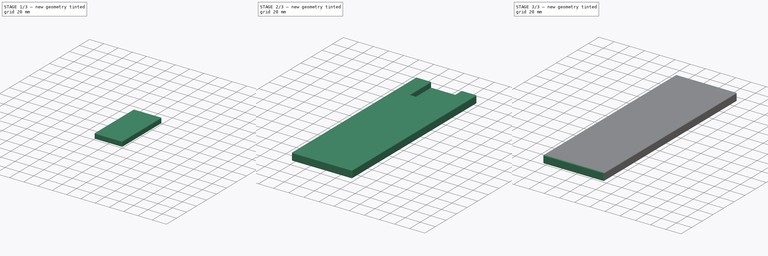
[diagram: build sequence overview — one tinted view per stage of 3, left to right]
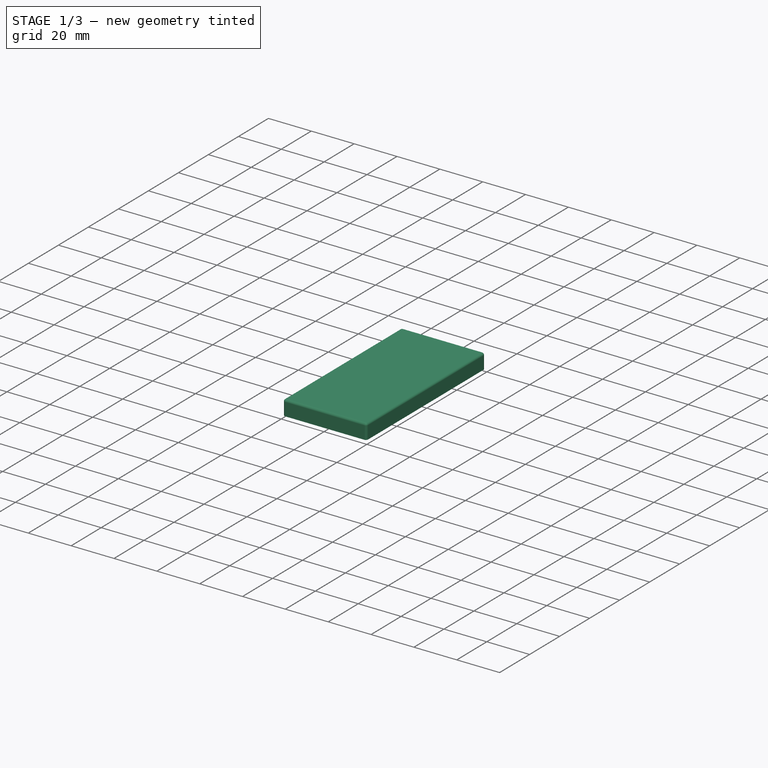
[diagram: stage 1 of 3 — iso view after this stage's code; geometry added in this stage tinted green]
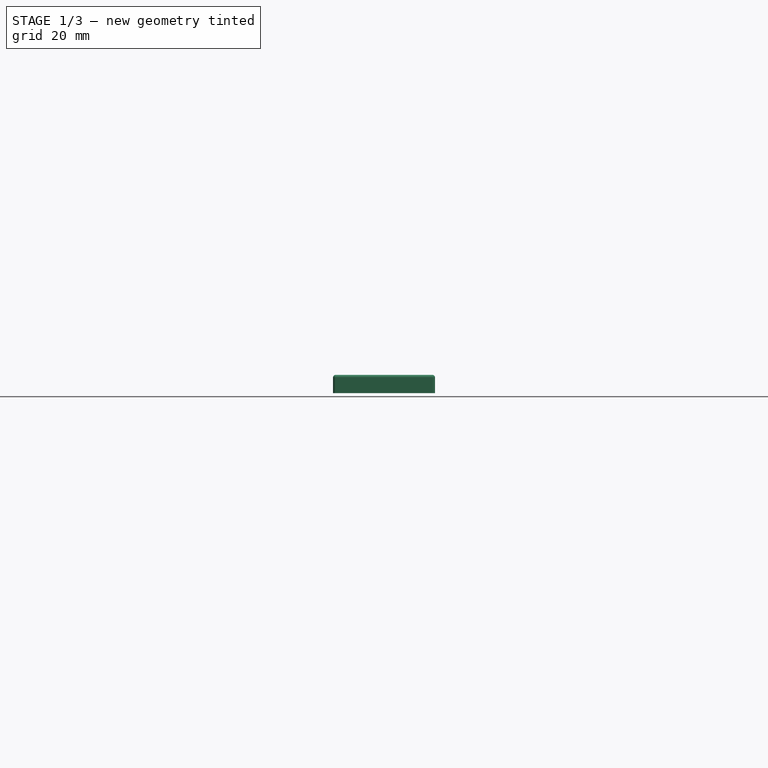
[diagram: stage 1 of 3 — front view after this stage's code; geometry added in this stage tinted green]
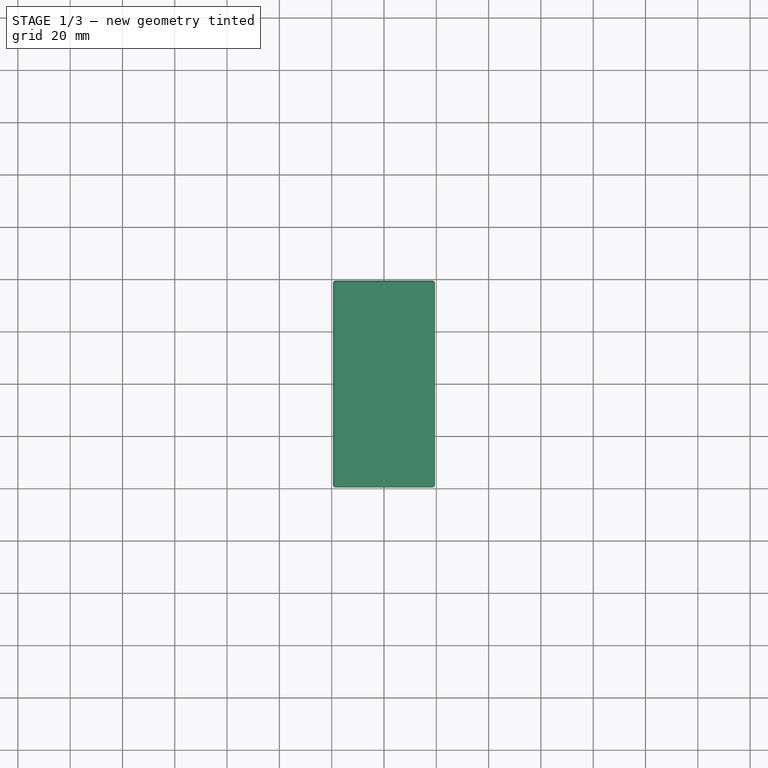
[diagram: stage 1 of 3 — top view after this stage's code; geometry added in this stage tinted green]
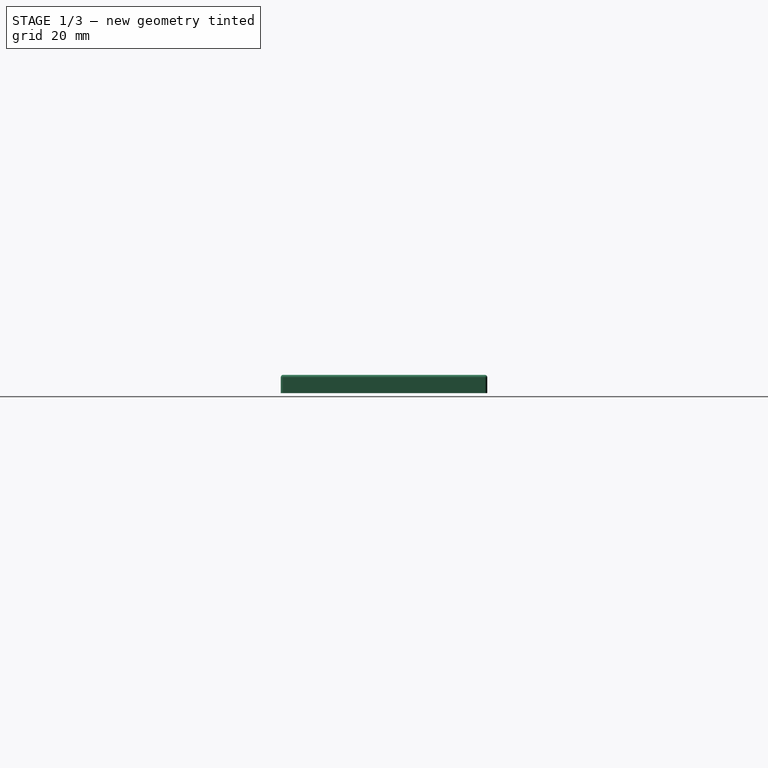
[diagram: stage 1 of 3 — right view after this stage's code; geometry added in this stage tinted green]
FCSTD DOCUMENT  (FreeCAD 1.1R20251125 (Git shallow))
Label: piano_spezie
License: All rights reserved
objects: Sketcher::SketchObject×4, App::Point×3, PartDesign::Pad×3, PartDesign::Fillet×3, PartDesign::Body×3, PartDesign::Pocket×1, App::DocumentObjectGroup×1
note: 32 computed .brp shape members not serialized (recipe doc carries the construction recipe); baked Part::Feature solids carry a one-line shape summary decoded from their .brp

FEATURE [PartDesign::Body] Body001  label="Sotto"
  AllowCompound = false
  Group = -> [Sketch001,Pad001,Sketch002,Pocket,Fillet001]
  Origin = -> Origin002
  Tip = -> Fillet001
FEATURE [App::Point] Origin005  label="Origin006"
  Role = Origin
FEATURE [Sketcher::SketchObject] Sketch003
  ArcFitTolerance = 1e-06
  AttachmentSupport = -> [Origin004]
  ExternalTypes = [0]
  FullyConstrained = true
  MakeInternals = false
  MapMode = 5
  sketch-geometry (5):
    g0: LineSegment StartX=-19.5 StartY=-39.5 StartZ=0 EndX=19.5 EndY=-39.5 EndZ=0
    g1: LineSegment StartX=19.5 StartY=-39.5 StartZ=0 EndX=19.5 EndY=39.5 EndZ=0
    g2: LineSegment StartX=19.5 StartY=39.5 StartZ=0 EndX=-19.5 EndY=39.5 EndZ=0
    g3: LineSegment StartX=-19.5 StartY=39.5 StartZ=0 EndX=-19.5 EndY=-39.5 EndZ=0
    g4: GeomPoint [constr] X=0 Y=0 Z=0
  constraints (12):
    c: Coincident(g0,g1)
    c: Coincident(g1,g2)
    c: Coincident(g2,g3)
    c: Coincident(g3,g0)
    c: Horizontal(g0)
    c: Horizontal(g2)
    c: Vertical(g1)
    c: Vertical(g3)
    c: Symmetric(g2,g0,g4)
    c: Distance(g1,g3) = 39
    c: Distance(g0,g2) = 79
    c: Coincident(g4,g-1)
FEATURE [PartDesign::Pad] Pad002
  Direction = (0,0,1)
  Length = 7
  Length2 = 10
  Profile = -> Sketch003
  ReferenceAxis = -> Sketch003 [N_Axis]
  Refine = true
  SideType = 0
  Suppressed = false
  Type = 0
  Type2 = 0
FEATURE [PartDesign::Fillet] Fillet002
  Base = -> Pad002 [Edge8,Edge1,Edge5,Edge2,Edge12,Edge4,Edge7,Edge10]
  BaseFeature = -> Pad002
  Radius = 1
  Refine = true
  SupportTransform = false
  Suppressed = false
  UseAllEdges = false
FEATURE [PartDesign::Body] Body002  label="Placca_di_Connessione"
  AllowCompound = false
  Group = -> [Sketch003,Pad002,Fillet002]
  Origin = -> Origin004
  Placement = pos=(9.17,183.56,0) rot=(0,0,1;0rad)
  Tip = -> Fillet002
FEATURE [App::DocumentObjectGroup] Group  label="Sotto_Group"
  Group = -> [Body001,Body002]
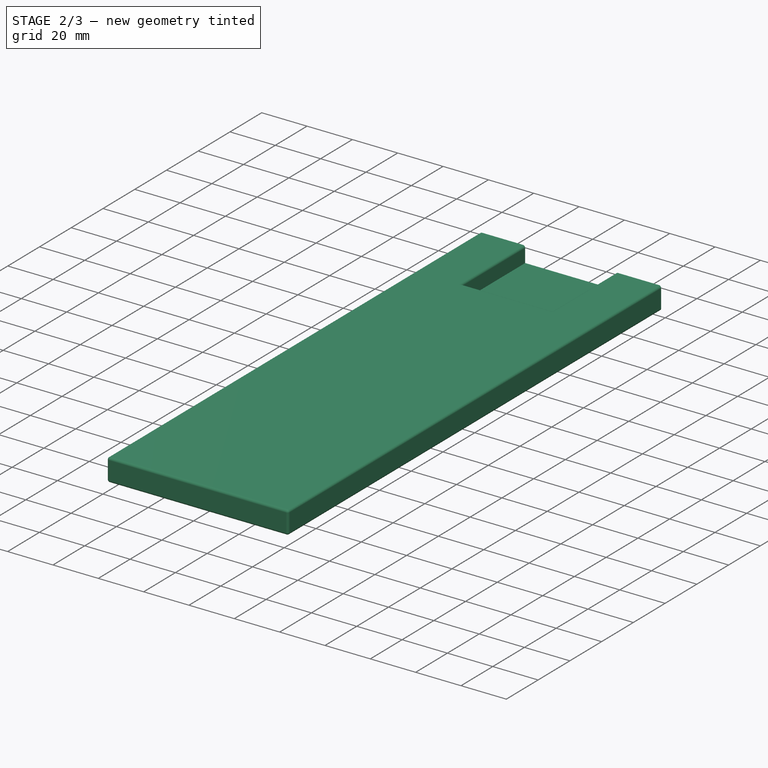
[diagram: stage 2 of 3 — iso view after this stage's code; geometry added in this stage tinted green]
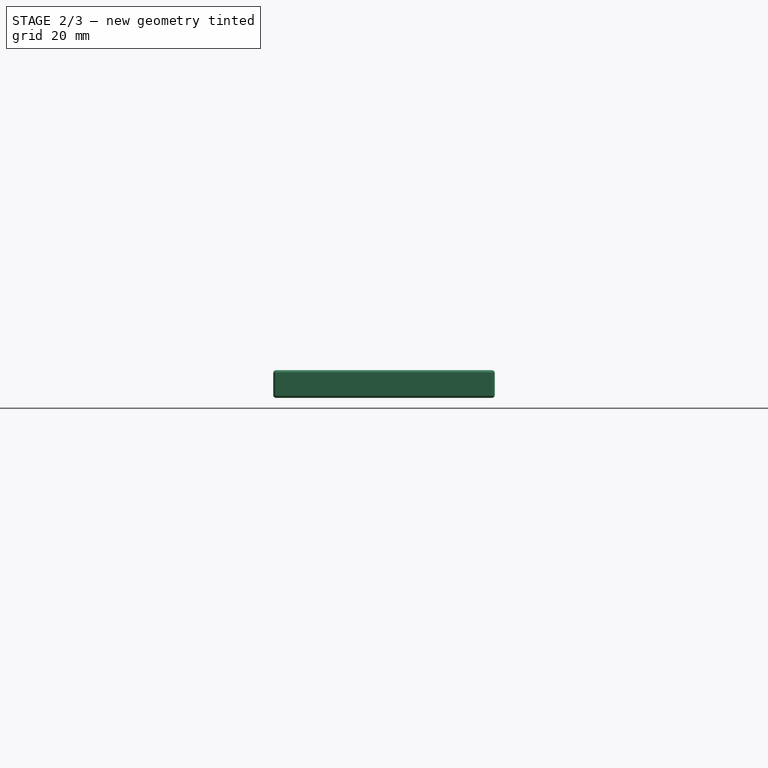
[diagram: stage 2 of 3 — front view after this stage's code; geometry added in this stage tinted green]
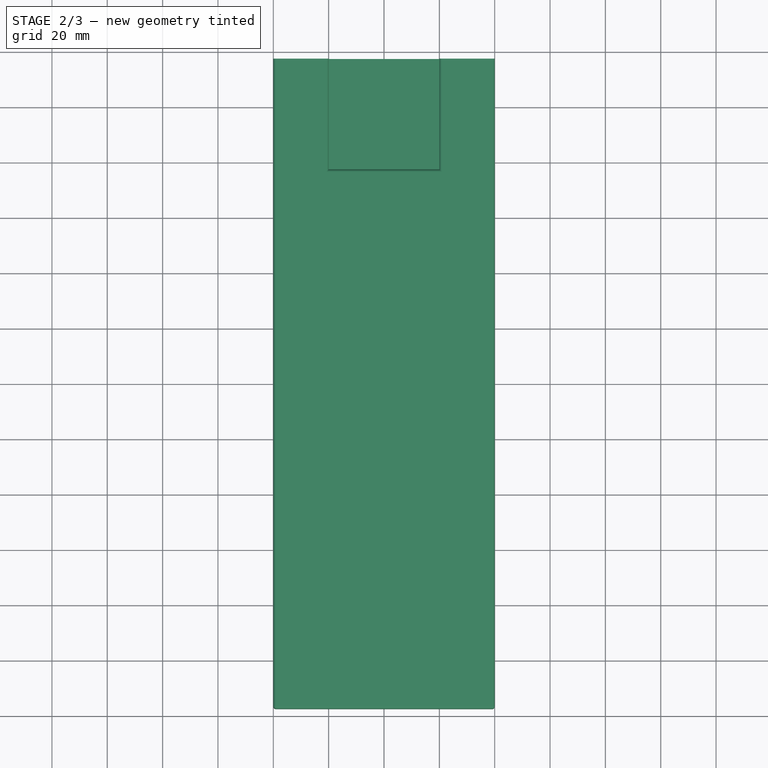
[diagram: stage 2 of 3 — top view after this stage's code; geometry added in this stage tinted green]
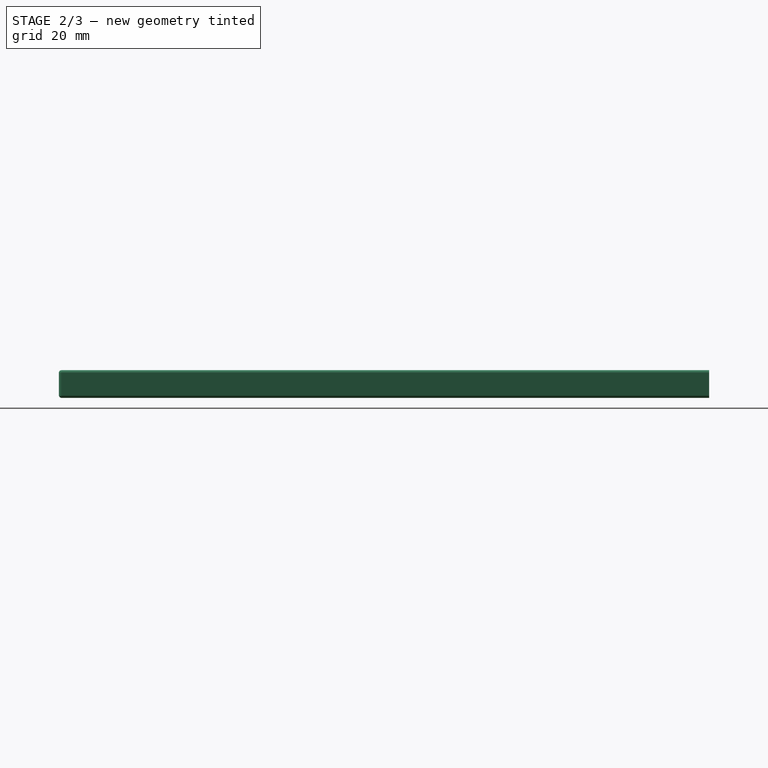
[diagram: stage 2 of 3 — right view after this stage's code; geometry added in this stage tinted green]
FEATURE [PartDesign::Body] Body  label="Sopra"
  AllowCompound = false
  Group = -> [Sketch,Pad,Fillet]
  Origin = -> Origin
  Placement = pos=(158.82,-54.77,0) rot=(0,0,1;0rad)
  Tip = -> Fillet
FEATURE [App::Point] Origin003
  Role = Origin
FEATURE [Sketcher::SketchObject] Sketch001
  ArcFitTolerance = 1e-06
  AttachmentSupport = -> [Origin002]
  ExternalTypes = [0]
  FullyConstrained = true
  MakeInternals = false
  MapMode = 5
  sketch-geometry (5):
    g0: LineSegment StartX=-40 StartY=-117.5 StartZ=0 EndX=40 EndY=-117.5 EndZ=0
    g1: LineSegment StartX=40 StartY=-117.5 StartZ=0 EndX=40 EndY=117.5 EndZ=0
    g2: LineSegment StartX=40 StartY=117.5 StartZ=0 EndX=-40 EndY=117.5 EndZ=0
    g3: LineSegment StartX=-40 StartY=117.5 StartZ=0 EndX=-40 EndY=-117.5 EndZ=0
    g4: GeomPoint [constr] X=0 Y=0 Z=0
  constraints (12):
    c: Coincident(g0,g1)
    c: Coincident(g1,g2)
    c: Coincident(g2,g3)
    c: Coincident(g3,g0)
    c: Horizontal(g0)
    c: Horizontal(g2)
    c: Vertical(g1)
    c: Vertical(g3)
    c: Symmetric(g2,g0,g4)
    c: Distance(g1,g3) = 80
    c: Distance(g0,g2) = 235
    c: Coincident(g4,g-1)
FEATURE [PartDesign::Pad] Pad001
  Direction = (0,0,1)
  Length = 10
  Length2 = 10
  Profile = -> Sketch001
  ReferenceAxis = -> Sketch001 [N_Axis]
  Refine = true
  SideType = 0
  Suppressed = false
  Type = 0
  Type2 = 0
FEATURE [Sketcher::SketchObject] Sketch002
  ArcFitTolerance = 1e-06
  AttachmentSupport = -> [Pad001]
  ExternalGeometry = -> [Pad001]
  ExternalTypes = [0]
  FullyConstrained = true
  MakeInternals = false
  MapMode = 5
  Placement = pos=(0,0,10) rot=(0,0,1;0rad)
  sketch-geometry (4):
    g0: LineSegment StartX=-20 StartY=117.5 StartZ=0 EndX=-20 EndY=77.5 EndZ=0
    g1: LineSegment StartX=-20 StartY=77.5 StartZ=0 EndX=20 EndY=77.5 EndZ=0
    g2: LineSegment StartX=20 StartY=77.5 StartZ=0 EndX=20 EndY=117.5 EndZ=0
    g3: LineSegment StartX=20 StartY=117.5 StartZ=0 EndX=-20 EndY=117.5 EndZ=0
  constraints (12):
    c: Coincident(g0,g1)
    c: Coincident(g1,g2)
    c: Coincident(g2,g3)
    c: Coincident(g3,g0)
    c: Vertical(g0)
    c: Vertical(g2)
    c: Horizontal(g1)
    c: Horizontal(g3)
    c: Distance(g0,g2) = 40
    c: Distance(g1,g3) = 40
    c: PointOnObject(g0,g-3)
    c: DistanceX(g-1,g2) = 20
FEATURE [PartDesign::Pocket] Pocket
  BaseFeature = -> Pad001
  Direction = (0,0,-1)
  Length = 7
  Length2 = 5
  Profile = -> Sketch002
  ReferenceAxis = -> Sketch002 [N_Axis]
  Refine = true
  SideType = 0
  Suppressed = false
  Type = 0
  Type2 = 0
FEATURE [PartDesign::Fillet] Fillet001
  Base = -> Pocket [Edge6,Edge7,Edge13,Edge14,Edge15,Edge4,Edge10,Edge1,Edge2,Edge3,Edge9]
  BaseFeature = -> Pocket
  Radius = 1
  Refine = true
  SupportTransform = false
  Suppressed = false
  UseAllEdges = false
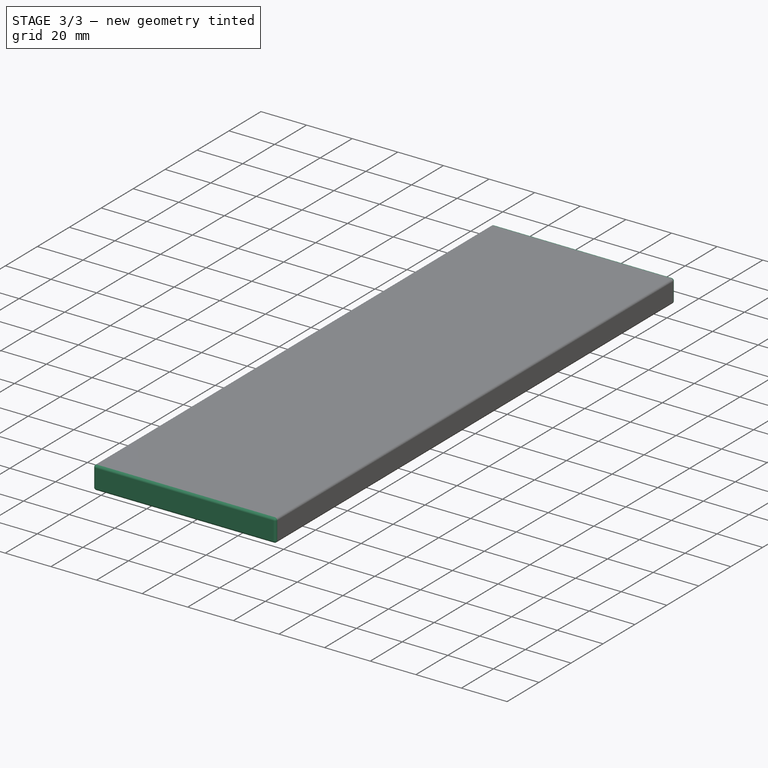
[diagram: stage 3 of 3 — iso view after this stage's code; geometry added in this stage tinted green]
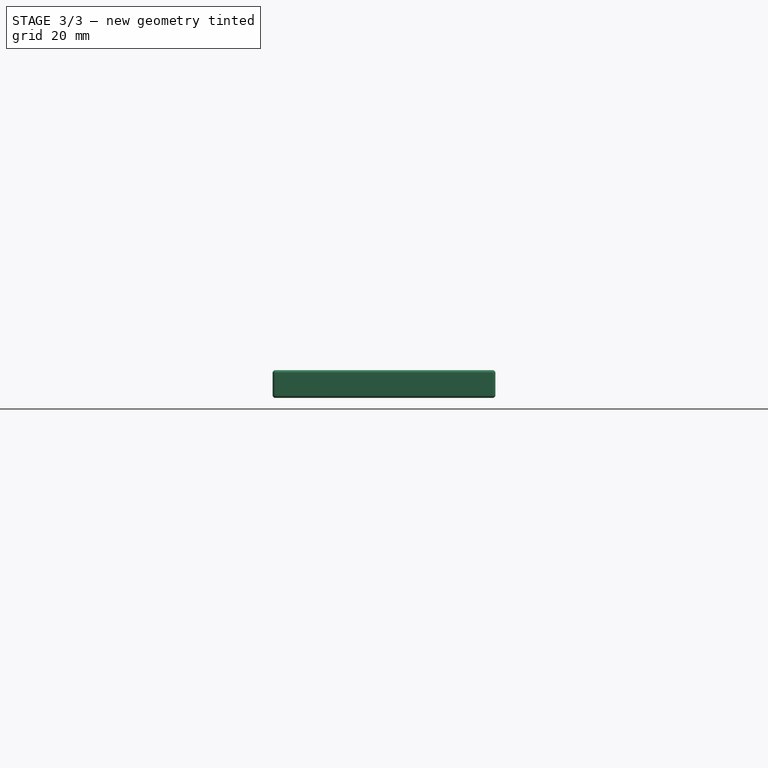
[diagram: stage 3 of 3 — front view after this stage's code; geometry added in this stage tinted green]
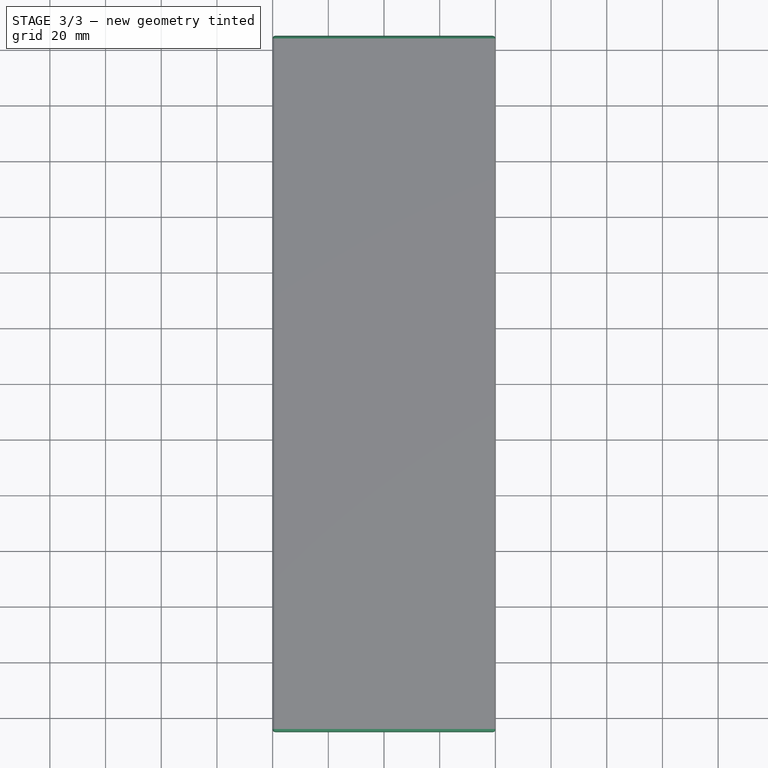
[diagram: stage 3 of 3 — top view after this stage's code; geometry added in this stage tinted green]
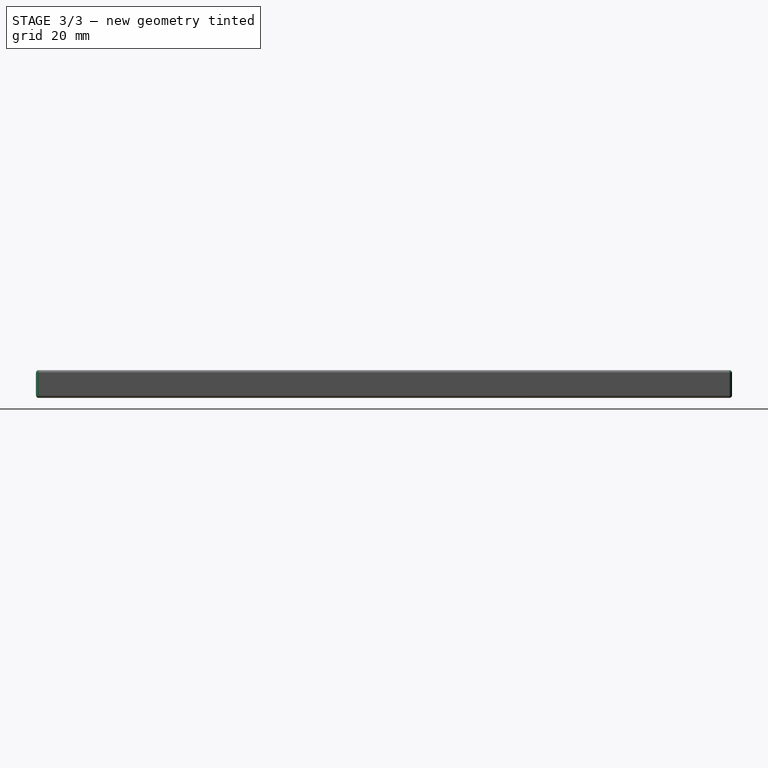
[diagram: stage 3 of 3 — right view after this stage's code; geometry added in this stage tinted green]
FEATURE [App::Point] Origin001
  Role = Origin
FEATURE [Sketcher::SketchObject] Sketch
  ArcFitTolerance = 1e-06
  AttachmentSupport = -> [Origin]
  ExternalTypes = [0]
  FullyConstrained = true
  MakeInternals = false
  MapMode = 5
  sketch-geometry (5):
    g0: LineSegment StartX=-40 StartY=-125 StartZ=0 EndX=40 EndY=-125 EndZ=0
    g1: LineSegment StartX=40 StartY=-125 StartZ=0 EndX=40 EndY=125 EndZ=0
    g2: LineSegment StartX=40 StartY=125 StartZ=0 EndX=-40 EndY=125 EndZ=0
    g3: LineSegment StartX=-40 StartY=125 StartZ=0 EndX=-40 EndY=-125 EndZ=0
    g4: GeomPoint [constr] X=0 Y=0 Z=0
  constraints (12):
    c: Coincident(g0,g1)
    c: Coincident(g1,g2)
    c: Coincident(g2,g3)
    c: Coincident(g3,g0)
    c: Horizontal(g0)
    c: Horizontal(g2)
    c: Vertical(g1)
    c: Vertical(g3)
    c: Symmetric(g2,g0,g4)
    c: Distance(g1,g3) = 80
    c: Distance(g0,g2) = 250
    c: Coincident(g4,g-1)
FEATURE [PartDesign::Pad] Pad
  Direction = (0,0,1)
  Length = 10
  Length2 = 10
  Profile = -> Sketch
  ReferenceAxis = -> Sketch [N_Axis]
  Refine = true
  SideType = 0
  Suppressed = false
  Type = 0
  Type2 = 0
FEATURE [PartDesign::Fillet] Fillet
  Base = -> Pad [Edge7,Edge6,Edge2,Edge1,Edge5,Edge8]
  BaseFeature = -> Pad
  Radius = 1
  Refine = true
  SupportTransform = false
  Suppressed = false
  UseAllEdges = true
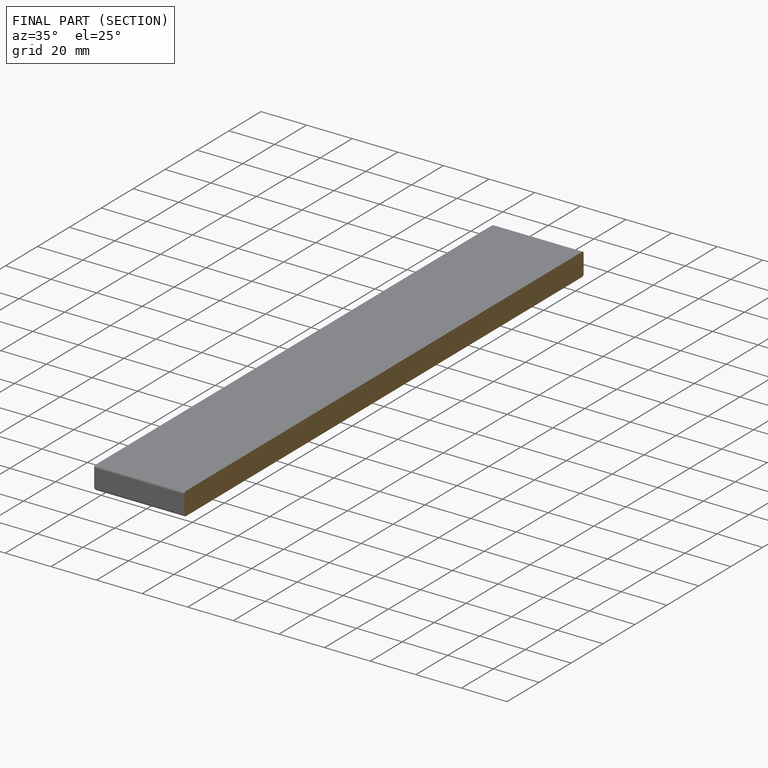
[diagram: finished part — half-section view (interior)]
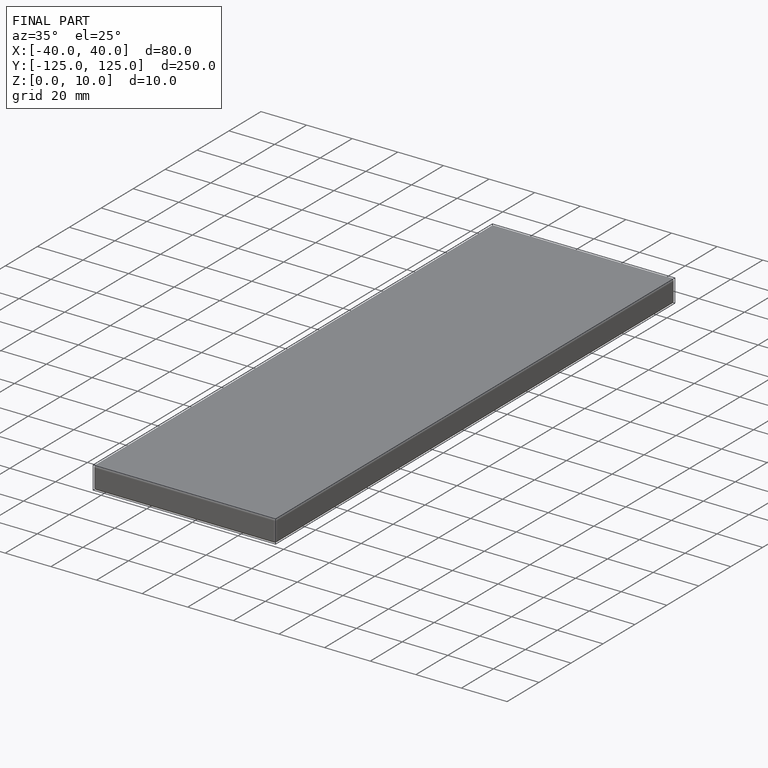
[diagram: finished part — iso view with bounding-box wireframe]
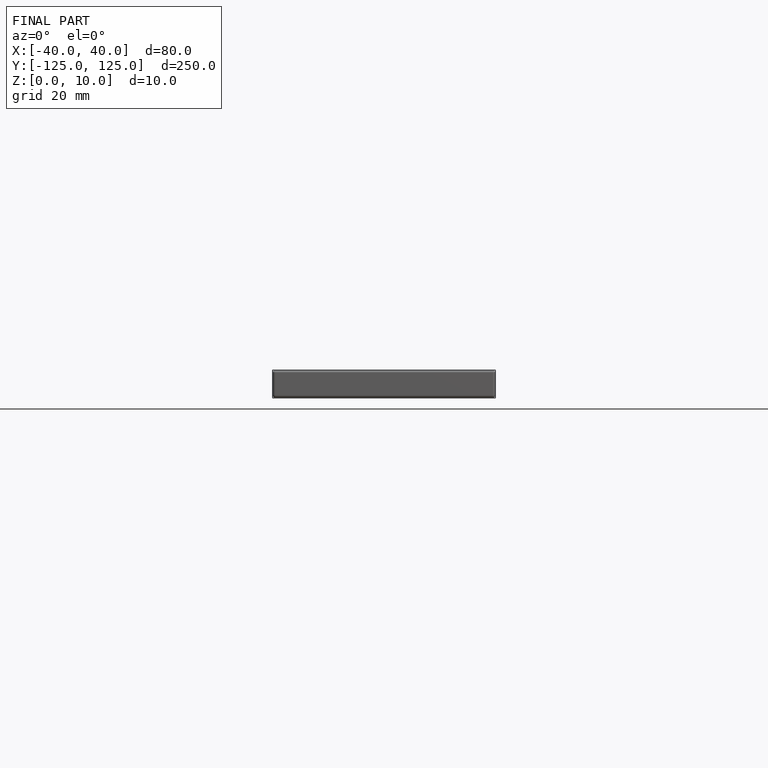
[diagram: finished part — front view with bounding-box wireframe]
